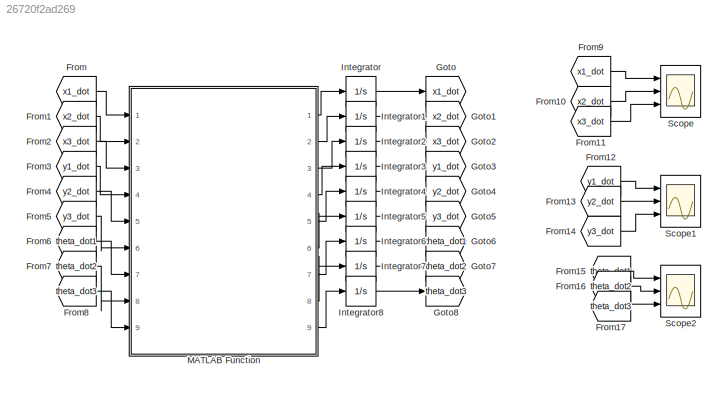
MODEL slx_26720f2ad269
KIND model
CONFIG AbsTol = auto
CONFIG EnableMultiTasking = off
CONFIG FixedStep = auto
CONFIG MaxStep = auto
CONFIG MinStep = auto
CONFIG RelTol = 1e-3
CONFIG SampleTimeConstraint = Unconstrained
CONFIG SolverName = VariableStepAuto
CONFIG StartTime = 0.0
CONFIG StopTime = 100
BLOCK [From] From
  GotoTag = x1_dot
BLOCK [From] From1
  GotoTag = x2_dot
BLOCK [From] From10
  GotoTag = x2_dot
BLOCK [From] From11
  GotoTag = x3_dot
BLOCK [From] From12
  GotoTag = y1_dot
BLOCK [From] From13
  GotoTag = y2_dot
BLOCK [From] From14
  GotoTag = y3_dot
BLOCK [From] From15
  GotoTag = theta_dot1
BLOCK [From] From16
  GotoTag = theta_dot2
BLOCK [From] From17
  GotoTag = theta_dot3
BLOCK [From] From2
  GotoTag = x3_dot
BLOCK [From] From3
  GotoTag = y1_dot
BLOCK [From] From4
  GotoTag = y2_dot
BLOCK [From] From5
  GotoTag = y3_dot
BLOCK [From] From6
  GotoTag = theta_dot1
BLOCK [From] From7
  GotoTag = theta_dot2
BLOCK [From] From8
  GotoTag = theta_dot3
BLOCK [From] From9
  GotoTag = x1_dot
BLOCK [Goto] Goto
  GotoTag = x1_dot
BLOCK [Goto] Goto1
  GotoTag = x2_dot
BLOCK [Goto] Goto2
  GotoTag = x3_dot
BLOCK [Goto] Goto3
  GotoTag = y1_dot
BLOCK [Goto] Goto4
  GotoTag = y2_dot
BLOCK [Goto] Goto5
  GotoTag = y3_dot
BLOCK [Goto] Goto6
  GotoTag = theta_dot1
BLOCK [Goto] Goto7
  GotoTag = theta_dot2
BLOCK [Goto] Goto8
  GotoTag = theta_dot3
BLOCK [Integrator] Integrator
  InitialCondition = rand(1,1)
  Ports = [1, 1]
BLOCK [Integrator] Integrator1
  InitialCondition = rand(1,1)
  Ports = [1, 1]
BLOCK [Integrator] Integrator2
  InitialCondition = rand
  Ports = [1, 1]
BLOCK [Integrator] Integrator3
  InitialCondition = rand
  Ports = [1, 1]
BLOCK [Integrator] Integrator4
  InitialCondition = rand
  Ports = [1, 1]
BLOCK [Integrator] Integrator5
  InitialCondition = rand
  Ports = [1, 1]
BLOCK [Integrator] Integrator6
  InitialCondition = rand
  Ports = [1, 1]
BLOCK [Integrator] Integrator7
  InitialCondition = rand
  Ports = [1, 1]
BLOCK [Integrator] Integrator8
  InitialCondition = rand
  Ports = [1, 1]
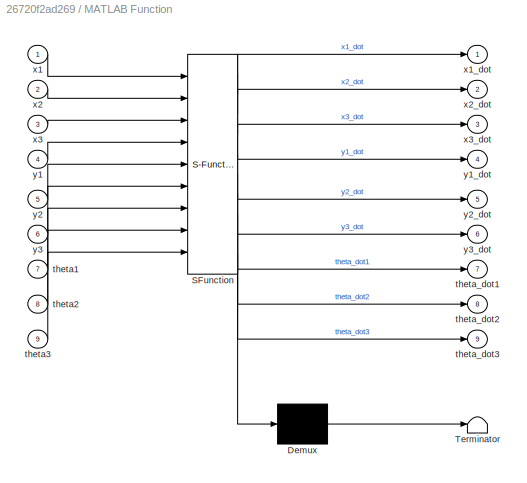
BLOCK [SubSystem] MATLAB Function
  ErrorFcn = Stateflow.Translate.translate
  PermitHierarchicalResolution = ExplicitOnly
  Ports = [9, 9]
  RequestExecContextInheritance = off
  SFBlockType = MATLAB Function
  TreatAsAtomicUnit = on
BLOCK [Demux] MATLAB Function/ Demux 
  Outputs = 1
  Ports = [1, 1]
BLOCK [S-Function] MATLAB Function/ SFunction 
  EnableBusSupport = on
  FunctionName = sf_sfun
  PortCounts = [9 10]
  Ports = [9, 10]
  SFcnIsStateOwnerBlock = off
  SFunctionDeploymentMode = off
  Tag = Stateflow S-Function 2
BLOCK [Terminator] MATLAB Function/ Terminator 
BLOCK [Inport] MATLAB Function/theta1
  Port = 7
BLOCK [Inport] MATLAB Function/theta2
  Port = 8
BLOCK [Inport] MATLAB Function/theta3
  Port = 9
BLOCK [Outport] MATLAB Function/theta_dot1
  Port = 7
BLOCK [Outport] MATLAB Function/theta_dot2
  Port = 8
BLOCK [Outport] MATLAB Function/theta_dot3
  Port = 9
BLOCK [Inport] MATLAB Function/x1
BLOCK [Outport] MATLAB Function/x1_dot
BLOCK [Inport] MATLAB Function/x2
  Port = 2
BLOCK [Outport] MATLAB Function/x2_dot
  Port = 2
BLOCK [Inport] MATLAB Function/x3
  Port = 3
BLOCK [Outport] MATLAB Function/x3_dot
  Port = 3
BLOCK [Inport] MATLAB Function/y1
  Port = 4
BLOCK [Outport] MATLAB Function/y1_dot
  Port = 4
BLOCK [Inport] MATLAB Function/y2
  Port = 5
BLOCK [Outport] MATLAB Function/y2_dot
  Port = 5
BLOCK [Inport] MATLAB Function/y3
  Port = 6
BLOCK [Outport] MATLAB Function/y3_dot
  Port = 6
BLOCK [Scope] Scope
  Floating = off
  NumInputPorts = 3
  Ports = [3]
  ScopeSpecificationString = Simulink.scopes.TimeScopeBlockCfg('CurrentConfiguration', extmgr.ConfigurationSet(extmgr.Configuration('Core','General UI',true,'FigureColor',[1 1 1]),extmgr.Configuration('Core','Source UI',true),extmgr.Configuration('Sources','WiredSimulink',true),extmgr.Configuration('Visuals','Time Domain',true,'SerializedDisplays',{struct('MinYLimReal','0.31905','MaxYLimReal','1.07566','YLabelReal','','MinYLi...<+1487ch>
BLOCK [Scope] Scope1
  Floating = off
  NumInputPorts = 3
  Ports = [3]
  ScopeSpecificationString = Simulink.scopes.TimeScopeBlockCfg('CurrentConfiguration', extmgr.ConfigurationSet(extmgr.Configuration('Core','General UI',true,'FigureColor',[1 1 1]),extmgr.Configuration('Core','Source UI',true),extmgr.Configuration('Sources','WiredSimulink',true,'DataLoggingVariableName','ScopeData1'),extmgr.Configuration('Visuals','Time Domain',true,'SerializedDisplays',{struct('MinYLimReal','-0.10298','MaxYLi...<+1529ch>
BLOCK [Scope] Scope2
  Floating = off
  NumInputPorts = 3
  Ports = [3]
  ScopeSpecificationString = Simulink.scopes.TimeScopeBlockCfg('CurrentConfiguration', extmgr.ConfigurationSet(extmgr.Configuration('Core','General UI',true,'FigureColor',[1 1 1]),extmgr.Configuration('Core','Source UI',true),extmgr.Configuration('Sources','WiredSimulink',true,'DataLoggingVariableName','ScopeData2'),extmgr.Configuration('Visuals','Time Domain',true,'SerializedDisplays',{struct('MinYLimReal','-0.05304','MaxYLi...<+1500ch>
LINE From10:1 -> Scope:2
LINE From11:1 -> Scope:3
LINE From12:1 -> Scope1:1
LINE From13:1 -> Scope1:2
LINE From14:1 -> Scope1:3
LINE From15:1 -> Scope2:1
LINE From16:1 -> Scope2:2
LINE From17:1 -> Scope2:3
LINE From1:1 -> MATLAB Function:2
LINE From2:1 -> MATLAB Function:3
LINE From3:1 -> MATLAB Function:4
LINE From4:1 -> MATLAB Function:5
LINE From5:1 -> MATLAB Function:6
LINE From6:1 -> MATLAB Function:7
LINE From7:1 -> MATLAB Function:8
LINE From8:1 -> MATLAB Function:9
LINE From9:1 -> Scope:1
LINE From:1 -> MATLAB Function:1
LINE Integrator1:1 -> Goto1:1
LINE Integrator2:1 -> Goto2:1
LINE Integrator3:1 -> Goto3:1
LINE Integrator4:1 -> Goto4:1
LINE Integrator5:1 -> Goto5:1
LINE Integrator6:1 -> Goto6:1
LINE Integrator7:1 -> Goto7:1
LINE Integrator8:1 -> Goto8:1
LINE Integrator:1 -> Goto:1
LINE MATLAB Function:1 -> Integrator:1
LINE MATLAB Function:2 -> Integrator1:1
LINE MATLAB Function:3 -> Integrator2:1
LINE MATLAB Function:4 -> Integrator3:1
LINE MATLAB Function:5 -> Integrator4:1
LINE MATLAB Function:6 -> Integrator5:1
LINE MATLAB Function:7 -> Integrator6:1
LINE MATLAB Function:8 -> Integrator7:1
LINE MATLAB Function:9 -> Integrator8:1
CHART MATLAB Function states=1 transitions=1
  STATE_LABEL 'eML_blk_kernel()'
  STATE_LABEL 'SCRIPT:\nfunction [x1_dot, x2_dot, x3_dot, y1_dot, y2_dot, y3_dot, theta_dot1, theta_dot2, theta_dot3] = fcn(x1, x2, x3, y1 ,y2, y3, theta1, theta2,theta3)\nxl1 = 1;\nyl1 = 1;\nthetal1 = 0;\n\n% calculate Xdot\n\nx1_dot = x2 - x1;\nx2_dot = x3 - x2;\nx3_dot = x1 - x3 + xl1 - x1;\n\n%Calculate Ydot\ny1_dot = y2 - y1;\ny2_dot = y3 - y2;\ny3_dot = y1 - y3 + yl1 - y1;\n\n%Calculate thetadot\ntheta_dot1 = theta2 - theta...<+83ch>'
CHART  states=0 transitions=0
